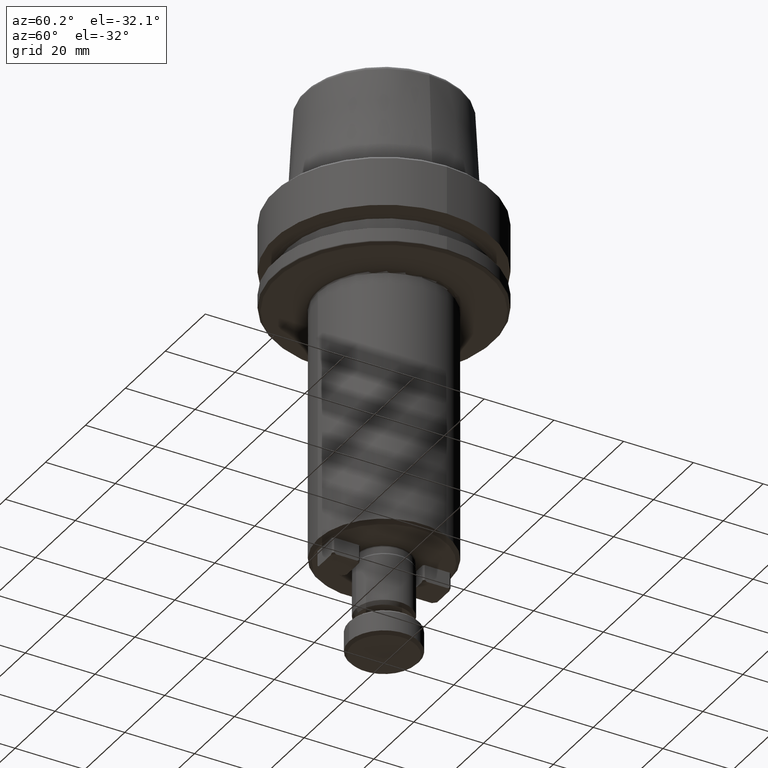
[diagram: clean part render]
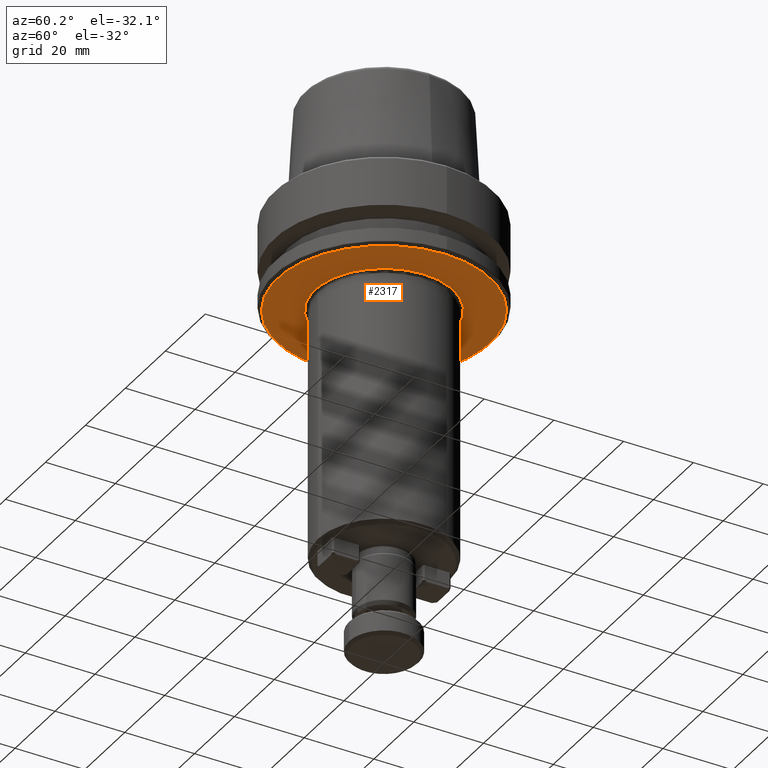
[diagram: same view with one face highlighted and labeled with its STEP entity id]
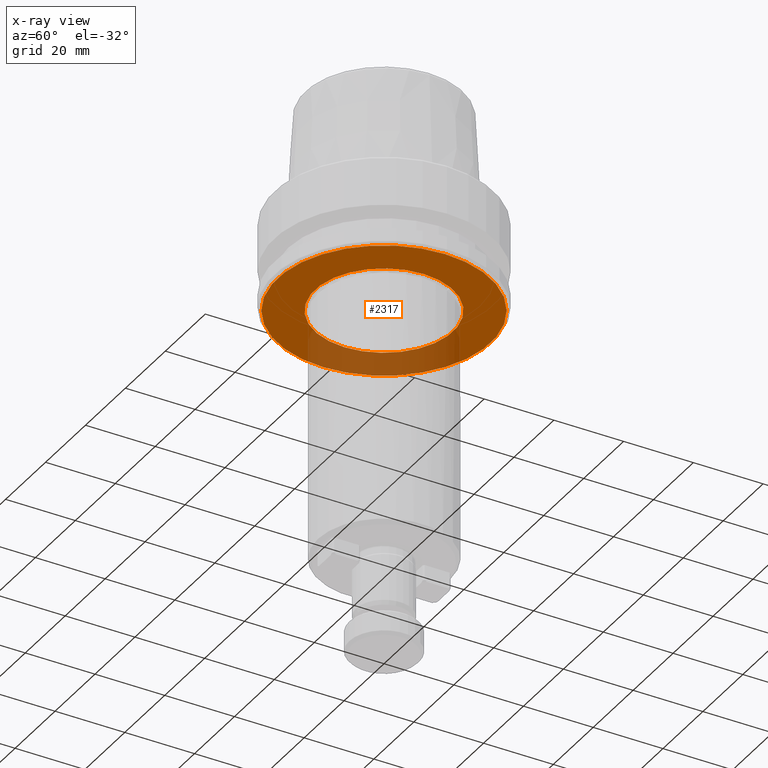
[diagram: x-ray of the same camera — body ghosted, the highlighted face saturated]
A machine part, auxiliary view. The second image highlights one B-rep face of the part: STEP entity #2317.
The next image is the same camera in x-ray: the body ghosted, the highlighted face saturated — about 27% of this face is hidden behind the body in this view.
In plain terms, the highlighted planar face has unit normal (0, -0, 1).
Its self-contained STEP definition (entity closure, byte-faithful):
#367 = DIRECTION ( 'NONE',  ( -0.0000000000000000000, -0.0000000000000000000, 1.000000000000000000 ) ) ;
#426 = CARTESIAN_POINT ( 'NONE',  ( 30.53431457505076500, 0.0000000000000000000, -26.00000000000001100 ) ) ;
#478 = DIRECTION ( 'NONE',  ( -0.0000000000000000000, -0.0000000000000000000, 1.000000000000000000 ) ) ;
#527 = AXIS2_PLACEMENT_3D ( 'NONE', #749, #2724, #1412 ) ;
#631 = ORIENTED_EDGE ( 'NONE', *, *, #2214, .T. ) ;
#749 = CARTESIAN_POINT ( 'NONE',  ( 0.0000000000000000000, 30.53431457505076500, -26.00000000000000700 ) ) ;
#823 = CARTESIAN_POINT ( 'NONE',  ( -30.53431457505076500, 3.756694181974138600E-015, -26.00000000000001100 ) ) ;
#923 = CIRCLE ( 'NONE', #1326, 30.53431457505076500 ) ;
#947 = AXIS2_PLACEMENT_3D ( 'NONE', #1651, #367, #1872 ) ;
#1023 = FACE_OUTER_BOUND ( 'NONE', #1917, .T. ) ;
#1148 = DIRECTION ( 'NONE',  ( -0.0000000000000000000, -0.0000000000000000000, 1.000000000000000000 ) ) ;
#1158 = ORIENTED_EDGE ( 'NONE', *, *, #1629, .F. ) ;
#1187 = PLANE ( 'NONE',  #527 ) ;
#1326 = AXIS2_PLACEMENT_3D ( 'NONE', #1497, #1419, #1711 ) ;
#1412 = DIRECTION ( 'NONE',  ( 1.000000000000000000, 0.0000000000000000000, 0.0000000000000000000 ) ) ;
#1419 = DIRECTION ( 'NONE',  ( -0.0000000000000000000, -0.0000000000000000000, 1.000000000000000000 ) ) ;
#1434 = CIRCLE ( 'NONE', #1737, 19.79999999999999700 ) ;
#1497 = CARTESIAN_POINT ( 'NONE',  ( 0.0000000000000000000, 0.0000000000000000000, -26.00000000000001100 ) ) ;
#1567 = VERTEX_POINT ( 'NONE', #2323 ) ;
#1615 = VERTEX_POINT ( 'NONE', #426 ) ;
#1629 = EDGE_CURVE ( 'NONE', #2571, #1615, #923, .T. ) ;
#1651 = CARTESIAN_POINT ( 'NONE',  ( 0.0000000000000000000, 0.0000000000000000000, -26.00000000000001100 ) ) ;
#1711 = DIRECTION ( 'NONE',  ( 1.000000000000000000, 0.0000000000000000000, 0.0000000000000000000 ) ) ;
#1737 = AXIS2_PLACEMENT_3D ( 'NONE', #2457, #1148, #2680 ) ;
#1764 = CARTESIAN_POINT ( 'NONE',  ( 0.0000000000000000000, 5.921369138734457200E-017, -26.00000000000000700 ) ) ;
#1819 = VERTEX_POINT ( 'NONE', #1867 ) ;
#1861 = ORIENTED_EDGE ( 'NONE', *, *, #2721, .T. ) ;
#1867 = CARTESIAN_POINT ( 'NONE',  ( 19.79999999999999700, 5.921369138734457200E-017, -26.00000000000000700 ) ) ;
#1872 = DIRECTION ( 'NONE',  ( 1.000000000000000000, 0.0000000000000000000, 0.0000000000000000000 ) ) ;
#1917 = EDGE_LOOP ( 'NONE', ( #2022, #1158 ) ) ;
#1983 = DIRECTION ( 'NONE',  ( 1.000000000000000000, 0.0000000000000000000, 0.0000000000000000000 ) ) ;
#2022 = ORIENTED_EDGE ( 'NONE', *, *, #2420, .F. ) ;
#2182 = FACE_BOUND ( 'NONE', #2254, .T. ) ;
#2214 = EDGE_CURVE ( 'NONE', #1567, #1819, #1434, .T. ) ;
#2239 = CIRCLE ( 'NONE', #2441, 19.79999999999999700 ) ;
#2254 = EDGE_LOOP ( 'NONE', ( #1861, #631 ) ) ;
#2317 = ADVANCED_FACE ( 'NONE', ( #2182, #1023 ), #1187, .F. ) ;
#2323 = CARTESIAN_POINT ( 'NONE',  ( -19.79999999999999700, 2.484014353699103600E-015, -26.00000000000000700 ) ) ;
#2420 = EDGE_CURVE ( 'NONE', #1615, #2571, #2563, .T. ) ;
#2441 = AXIS2_PLACEMENT_3D ( 'NONE', #1764, #478, #1983 ) ;
#2457 = CARTESIAN_POINT ( 'NONE',  ( 0.0000000000000000000, 5.921369138734457200E-017, -26.00000000000000700 ) ) ;
#2563 = CIRCLE ( 'NONE', #947, 30.53431457505076500 ) ;
#2571 = VERTEX_POINT ( 'NONE', #823 ) ;
#2680 = DIRECTION ( 'NONE',  ( 1.000000000000000000, 0.0000000000000000000, 0.0000000000000000000 ) ) ;
#2721 = EDGE_CURVE ( 'NONE', #1819, #1567, #2239, .T. ) ;
#2724 = DIRECTION ( 'NONE',  ( 0.0000000000000000000, -0.0000000000000000000, 1.000000000000000000 ) ) ;